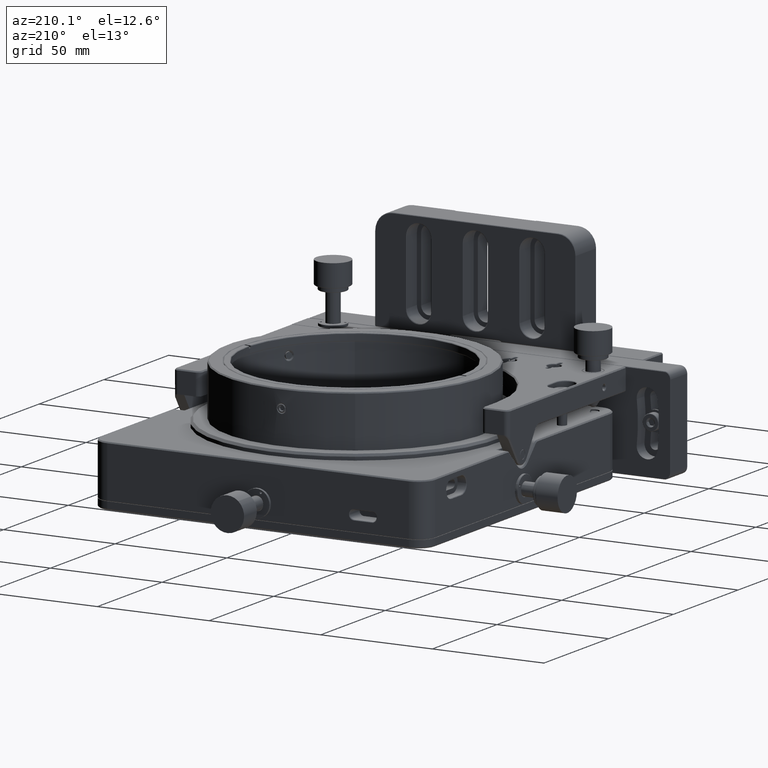
[diagram: clean part render]
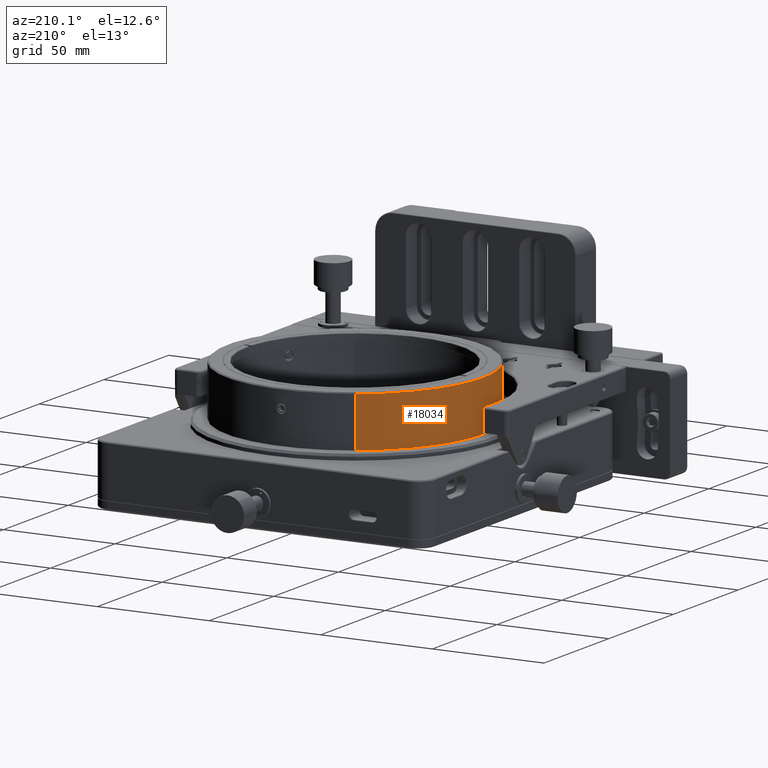
[diagram: same view with one face highlighted and labeled with its STEP entity id]
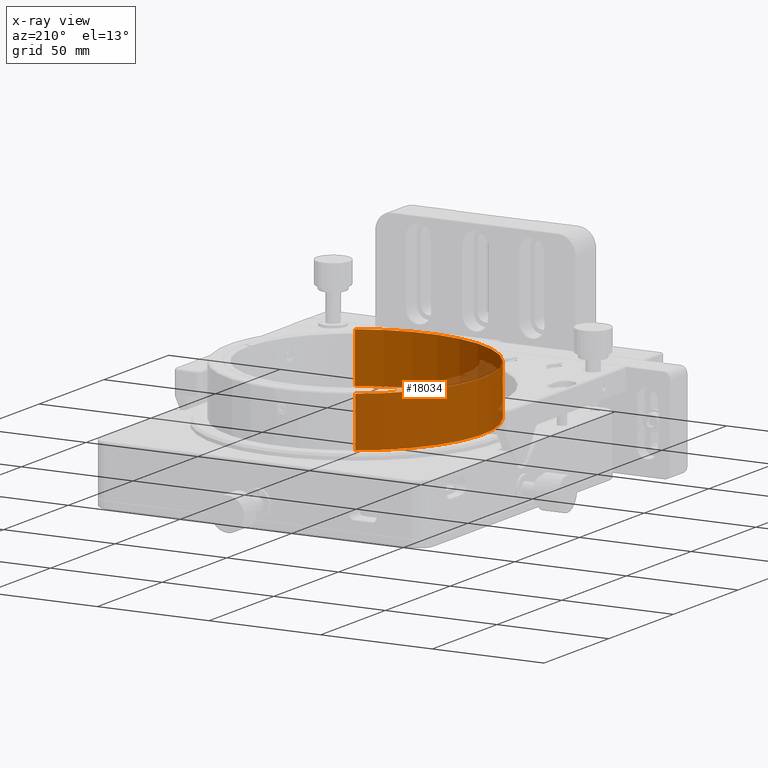
[diagram: x-ray of the same camera — body ghosted, the highlighted face saturated]
A machine part, auxiliary view. The second image highlights one B-rep face of the part: STEP entity #18034.
The next image is the same camera in x-ray: the body ghosted, the highlighted face saturated — about 6% of this face is hidden behind the body in this view.
In plain terms, the highlighted cylindrical surface (partial cylindrical patch) has radius 57.25 mm, axis along (0, 0, 1).
Its self-contained STEP definition (entity closure, byte-faithful):
#355 = ORIENTED_EDGE ( 'NONE', *, *, #79315, .F. ) ;
#489 = CARTESIAN_POINT ( 'NONE',  ( -49.03150797760098101, 71.34544420770808415, 24.94280864587968338 ) ) ;
#1215 = CARTESIAN_POINT ( 'NONE',  ( -50.44838060753755826, 73.83483023278245128, 22.20103990586378728 ) ) ;
#1293 = CARTESIAN_POINT ( 'NONE',  ( -48.48032132693241181, 70.44969703635464953, 23.80917422922992799 ) ) ;
#1614 = CARTESIAN_POINT ( 'NONE',  ( -50.16629586035413269, 73.31517854810145707, 21.35242313401717240 ) ) ;
#2013 = CARTESIAN_POINT ( 'NONE',  ( -50.42777367803543598, 73.79643035060409773, 22.09274114057058114 ) ) ;
#2822 = CARTESIAN_POINT ( 'NONE',  ( -50.28966140081777780, 73.54075411511327331, 24.38332464928119592 ) ) ;
#3093 = EDGE_LOOP ( 'NONE', ( #75250, #47532 ) ) ;
#3217 = CARTESIAN_POINT ( 'NONE',  ( -49.89854211901488412, 72.83404175956844995, 21.01813569080119493 ) ) ;
#3595 = EDGE_CURVE ( 'NONE', #31672, #63857, #8849, .T. ) ;
#4823 = CARTESIAN_POINT ( 'NONE',  ( -49.76341971205269488, 72.59384841838632951, 20.90081265998658111 ) ) ;
#5392 = CARTESIAN_POINT ( 'NONE',  ( -49.35789037707633042, 71.89349998227400818, 20.86252386236676415 ) ) ;
#5780 = CARTESIAN_POINT ( 'NONE',  ( -48.65480530072890275, 70.72901489336135228, 21.61759106757423154 ) ) ;
#6040 = CARTESIAN_POINT ( 'NONE',  ( -4.713455966382529986E-14, 100.9000000000000057, 8.000000000000000000 ) ) ;
#6188 = CARTESIAN_POINT ( 'NONE',  ( -48.54692421973549443, 70.55584010738743928, 21.92681857959061986 ) ) ;
#6996 = CARTESIAN_POINT ( 'NONE',  ( -48.47852697559193302, 70.44684019826397048, 23.80067173139002534 ) ) ;
#7313 = CARTESIAN_POINT ( 'NONE',  ( -50.19775815813667208, 73.37278360696112145, 24.57792373037374389 ) ) ;
#7710 = CARTESIAN_POINT ( 'NONE',  ( -50.43340611576715560, 73.80691907502162508, 23.87531110979516669 ) ) ;
#7789 = CARTESIAN_POINT ( 'NONE',  ( -48.70454819770934307, 70.80962690928627978, 24.47991560009158718 ) ) ;
#8112 = CARTESIAN_POINT ( 'NONE',  ( -50.44571738661782945, 73.82986703159181729, 22.18687415815467290 ) ) ;
#8491 = LINE ( 'NONE', #45105, #23026 ) ;
#8510 = CARTESIAN_POINT ( 'NONE',  ( -49.55830724484307126, 72.23723780170597308, 25.15000000000000924 ) ) ;
#8849 = CIRCLE ( 'NONE', #20563, 57.24999999999999289 ) ;
#9713 = CARTESIAN_POINT ( 'NONE',  ( -49.49228318551890027, 72.12368326063230484, 20.85000000000000142 ) ) ;
#10312 = AXIS2_PLACEMENT_3D ( 'NONE', #74906, #68795, #69194 ) ;
#11086 = CARTESIAN_POINT ( 'NONE',  ( -48.85682998174747382, 71.05761518345069305, 21.25894609117683842 ) ) ;
#11494 = CARTESIAN_POINT ( 'NONE',  ( -48.60462983111479929, 70.64827816416480744, 21.74789417853066098 ) ) ;
#12001 = EDGE_CURVE ( 'NONE', #43791, #63857, #8491, .T. ) ;
#12685 = CARTESIAN_POINT ( 'NONE',  ( -49.21764078308514456, 71.65517003178990763, 25.09913015424947247 ) ) ;
#13091 = CARTESIAN_POINT ( 'NONE',  ( -48.85870269444166780, 71.06054805627431392, 24.74734223273127753 ) ) ;
#13153 = B_SPLINE_CURVE_WITH_KNOTS ( 'NONE', 3,
 ( #66780, #79405, #5392, #67194, #60288, #22875, #30589, #29394, #48100, #54987, #24478, #73695, #73292, #72897, #61480, #11086, #67987, #35902, #23688, #16781, #5780, #11494, #6188, #30996, #48496, #60689, #49289, #17566, #36309, #74093, #43202, #78607, #69590, #50898, #13889, #56196, #38703, #74908, #56997, #32218, #14289, #19979, #6996, #1293, #74508, #19179, #55787, #63499, #49695, #31399, #26090, #45203, #7789, #43600, #13091, #68387, #20376, #50094, #489, #37909, #69196, #32612, #44010, #38307, #50499, #12685, #62701, #69993 ),
 .UNSPECIFIED., .F., .F.,
 ( 4, 2, 2, 1, 1, 1, 2, 2, 2, 2, 2, 2, 2, 2, 2, 1, 1, 2, 2, 2, 2, 2, 1, 1, 1, 2, 2, 2, 2, 2, 2, 2, 2, 2, 1, 1, 2, 2, 4 ),
 ( 0.000000000000000000, 0.06249999999991413813, 0.09374999999987197741, 0.1093749999998474692, 0.1171874999998327865, 0.1210937499998282624, 0.1230468749998280542, 0.1249999999998278599, 0.1874999999998203104, 0.2187499999998158973, 0.2343749999998158418, 0.2499999999998158140, 0.3124999999998212541, 0.3437499999998246958, 0.3593749999998268052, 0.3671874999998279154, 0.3710937499998288591, 0.3730468749998289701, 0.3749999999998290257, 0.4999999999997591926, 0.5624999999997251088, 0.5937499999997079003, 0.6093749999996995736, 0.6171874999996950217, 0.6210937499996923572, 0.6230468749996928013, 0.6249999999996933564, 0.6874999999997536415, 0.7187499999997841726, 0.7343749999997993827, 0.7499999999998144817, 0.8124999999998795408, 0.8437499999999149569, 0.8593749999999311662, 0.8671874999999353850, 0.8710937499999351630, 0.8730468749999350520, 0.8749999999999349409, 1.000000000000000000 ),
 .UNSPECIFIED. ) ;
#13421 = CARTESIAN_POINT ( 'NONE',  ( -50.51412715834207035, 73.95768215879360241, 22.73213386941076664 ) ) ;
#13585 = CARTESIAN_POINT ( 'NONE',  ( 28.77631673936754808, 51.40771681448109831, 8.000000000000000000 ) ) ;
#13889 = CARTESIAN_POINT ( 'NONE',  ( -48.39758967482586627, 70.31837474158234613, 23.13451166013691562 ) ) ;
#14211 = CARTESIAN_POINT ( 'NONE',  ( -50.01702760230794809, 73.04585479921028934, 21.14007971303480815 ) ) ;
#14289 = CARTESIAN_POINT ( 'NONE',  ( -48.46979670667010254, 70.43294321940365421, 23.75810150474790561 ) ) ;
#14609 = CARTESIAN_POINT ( 'NONE',  ( -49.72802526254103128, 72.53298101239764151, 25.09665633379576732 ) ) ;
#15003 = CARTESIAN_POINT ( 'NONE',  ( -49.91495721687442000, 72.86325201139065655, 21.03277888938931639 ) ) ;
#15434 = CARTESIAN_POINT ( 'NONE',  ( -49.49228318551890027, 72.12368326063230484, 20.85000000000000142 ) ) ;
#16605 = CARTESIAN_POINT ( 'NONE',  ( -49.90164541730963776, 72.83956091187410209, 21.02086388329527722 ) ) ;
#16781 = CARTESIAN_POINT ( 'NONE',  ( -48.73763801887178460, 70.86325356653392760, 21.45530812208384575 ) ) ;
#17566 = CARTESIAN_POINT ( 'NONE',  ( -48.49022108921709417, 70.46545624229976568, 22.14551720022175374 ) ) ;
#18034 = ADVANCED_FACE ( 'NONE', ( #56194, #75713 ), #38305, .T. ) ;
#19179 = CARTESIAN_POINT ( 'NONE',  ( -48.50170914093665431, 70.48375334194130915, 23.90873113404798289 ) ) ;
#19502 = CARTESIAN_POINT ( 'NONE',  ( -49.49228318551890027, 72.12368326063230484, 25.14999999999999858 ) ) ;
#19902 = CARTESIAN_POINT ( 'NONE',  ( -50.49589329681133876, 73.92353087117703581, 22.52667592350237058 ) ) ;
#19979 = CARTESIAN_POINT ( 'NONE',  ( -48.47585885180880183, 70.44259247073500774, 23.78791218097000737 ) ) ;
#20299 = CARTESIAN_POINT ( 'NONE',  ( -50.44291341555251762, 73.82464164178968247, 23.82774405982297594 ) ) ;
#20376 = CARTESIAN_POINT ( 'NONE',  ( -48.97910050852110686, 71.25871904044662131, 24.89110957033549454 ) ) ;
#20563 = AXIS2_PLACEMENT_3D ( 'NONE', #34422, #66802, #44437 ) ;
#20705 = CARTESIAN_POINT ( 'NONE',  ( -50.21409144798806068, 73.40257264322990238, 24.54522855128945480 ) ) ;
#20873 = DIRECTION ( 'NONE',  ( 7.798222056111458678E-17, 4.534123169250859820E-17, 1.000000000000000000 ) ) ;
#21101 = CARTESIAN_POINT ( 'NONE',  ( -50.28500683272864791, 73.53242347711787374, 21.61638050464673810 ) ) ;
#22875 = CARTESIAN_POINT ( 'NONE',  ( -49.16592090857717068, 71.56956216443921903, 20.95190036114071575 ) ) ;
#23026 = VECTOR ( 'NONE', #52389, 1000.000000000000000 ) ;
#23172 = ORIENTED_EDGE ( 'NONE', *, *, #12001, .F. ) ;
#23688 = CARTESIAN_POINT ( 'NONE',  ( -48.75551626772183056, 70.89229767052718501, 21.42246339078504036 ) ) ;
#24478 = CARTESIAN_POINT ( 'NONE',  ( -49.08271787537095321, 71.43053582022189119, 21.01252778011541977 ) ) ;
#26010 = CARTESIAN_POINT ( 'NONE',  ( -50.35219911877812393, 73.65612920772170469, 21.80611240839576936 ) ) ;
#26090 = CARTESIAN_POINT ( 'NONE',  ( -48.66039974912276023, 70.73824207022069288, 24.38417277626932034 ) ) ;
#26409 = CARTESIAN_POINT ( 'NONE',  ( -50.38667903822912564, 73.71996275626993622, 24.07499492500106442 ) ) ;
#26808 = CARTESIAN_POINT ( 'NONE',  ( -49.81289651434290278, 72.68231585133307249, 25.04777124219834405 ) ) ;
#26981 = LINE ( 'NONE', #40801, #76035 ) ;
#27209 = CARTESIAN_POINT ( 'NONE',  ( -49.89556518020950904, 72.82874990485672129, 24.98445018613101709 ) ) ;
#27605 = CARTESIAN_POINT ( 'NONE',  ( -50.49699097600551312, 73.92541150280746365, 23.54425117871119966 ) ) ;
#29228 = B_SPLINE_CURVE_WITH_KNOTS ( 'NONE', 3,
 ( #19502, #8510, #64619, #14609, #44728, #26808, #69513, #39822, #57318, #50818, #33729, #27209, #57714, #38625, #63423, #51217, #58515, #32535, #7313, #20705, #2822, #76036, #26409, #39426, #32930, #75235, #7710, #44335, #76831, #20299, #69120, #63818, #27605, #33324, #38230, #13421, #19902, #45925, #63021, #64211, #32134, #56917, #1215, #58116, #8112, #2013, #45125, #26010, #52015, #75637, #21101, #39022, #51621, #1614, #69918, #14211, #76436, #45527, #70311, #70713, #15003, #66219, #16605, #52815, #3217, #4823, #46321, #9713 ),
 .UNSPECIFIED., .F., .F.,
 ( 4, 2, 2, 1, 1, 1, 2, 2, 2, 2, 2, 2, 2, 2, 2, 1, 1, 2, 2, 2, 2, 2, 1, 1, 1, 2, 2, 2, 2, 2, 2, 2, 2, 2, 1, 1, 2, 2, 4 ),
 ( 0.000000000000000000, 0.06249999999979373444, 0.09374999999969134412, 0.1093749999996396771, 0.1171874999996131428, 0.1210937499996022765, 0.1230468749996001532, 0.1249999999995980438, 0.1874999999995990430, 0.2187499999995985156, 0.2343749999995960176, 0.2499999999995934918, 0.3124999999995847766, 0.3437499999995804467, 0.3593749999995793365, 0.3671874999995787814, 0.3710937499995805577, 0.3730468749995810573, 0.3749999999995815014, 0.4999999999996934674, 0.5624999999997503108, 0.5937499999997787326, 0.6093749999997937206, 0.6171874999998027134, 0.6210937499998072653, 0.6230468749998092637, 0.6249999999998112621, 0.6874999999998182565, 0.7187499999998231415, 0.7343749999998241407, 0.7499999999998251399, 0.8124999999998370193, 0.8437499999998399058, 0.8593749999998442357, 0.8671874999998422373, 0.8710937499998453459, 0.8730468749998478994, 0.8749999999998504530, 1.000000000000000000 ),
 .UNSPECIFIED. ) ;
#29394 = CARTESIAN_POINT ( 'NONE',  ( -49.10894216398413903, 71.47425271654117296, 20.99174728043957572 ) ) ;
#30198 = CARTESIAN_POINT ( 'NONE',  ( -49.49228318551890027, 72.12368326063230484, 25.14999999999999858 ) ) ;
#30589 = CARTESIAN_POINT ( 'NONE',  ( -49.13959838398785962, 71.52545823277141324, 20.96910584252100307 ) ) ;
#30996 = CARTESIAN_POINT ( 'NONE',  ( -48.53060125737988528, 70.52978114135146370, 21.98381220379095069 ) ) ;
#31399 = CARTESIAN_POINT ( 'NONE',  ( -48.64672938247971956, 70.71618116819014688, 24.35207480074472031 ) ) ;
#31672 = VERTEX_POINT ( 'NONE', #77500 ) ;
#32067 = DIRECTION ( 'NONE',  ( -7.798222056111458678E-17, -4.534123169250859820E-17, -1.000000000000000000 ) ) ;
#32134 = CARTESIAN_POINT ( 'NONE',  ( -50.45612801612592335, 73.84927191597958540, 22.24365827753952729 ) ) ;
#32218 = CARTESIAN_POINT ( 'NONE',  ( -48.45832346925334377, 70.41468825765795714, 23.69834427060885318 ) ) ;
#32535 = CARTESIAN_POINT ( 'NONE',  ( -50.16638323261339139, 73.31569126689285554, 24.63681226793439194 ) ) ;
#32612 = CARTESIAN_POINT ( 'NONE',  ( -49.06825875386378044, 71.40646854292278078, 24.97544087800487489 ) ) ;
#32930 = CARTESIAN_POINT ( 'NONE',  ( -50.41989084191543924, 73.78173169261080488, 23.93827251803314127 ) ) ;
#33324 = CARTESIAN_POINT ( 'NONE',  ( -50.51972189071244657, 73.96823011545026816, 23.26479697818574977 ) ) ;
#33729 = CARTESIAN_POINT ( 'NONE',  ( -49.89268315670769027, 72.82362771627619225, 24.98693840945282219 ) ) ;
#34422 = CARTESIAN_POINT ( 'NONE',  ( -4.537995970120020056E-14, 100.9000000000000057, 30.50000000000000000 ) ) ;
#35902 = CARTESIAN_POINT ( 'NONE',  ( -48.78970976952487604, 70.94796681436845631, 21.36338227514414712 ) ) ;
#36309 = CARTESIAN_POINT ( 'NONE',  ( -48.48563025964483586, 70.45814909213117971, 22.16622781770158213 ) ) ;
#37346 = VERTEX_POINT ( 'NONE', #13585 ) ;
#37613 = EDGE_CURVE ( 'NONE', #37346, #31672, #26981, .T. ) ;
#37909 = CARTESIAN_POINT ( 'NONE',  ( -49.04959103072844329, 71.37544836660526926, 24.95920911447116453 ) ) ;
#38230 = CARTESIAN_POINT ( 'NONE',  ( -50.51974262245673941, 73.96826981334500317, 22.86797473553879811 ) ) ;
#38305 = CYLINDRICAL_SURFACE ( 'NONE', #10312, 57.24999999999999289 ) ;
#38307 = CARTESIAN_POINT ( 'NONE',  ( -49.07512774519227605, 71.41789808162590703, 24.98120756359812233 ) ) ;
#38625 = CARTESIAN_POINT ( 'NONE',  ( -49.98870321295264318, 72.99486103908118650, 24.89714169892170759 ) ) ;
#38703 = CARTESIAN_POINT ( 'NONE',  ( -48.42483462634162095, 70.36149134760293578, 23.47540863068158501 ) ) ;
#39022 = CARTESIAN_POINT ( 'NONE',  ( -50.25839660997299774, 73.48362411497939206, 21.55175488968869502 ) ) ;
#39426 = CARTESIAN_POINT ( 'NONE',  ( -50.40123888659592666, 73.74701602727870409, 24.01818756360598073 ) ) ;
#39761 = ORIENTED_EDGE ( 'NONE', *, *, #3595, .T. ) ;
#39822 = CARTESIAN_POINT ( 'NONE',  ( -49.86762494097885678, 72.77913964505705735, 25.00778982042206522 ) ) ;
#40801 = CARTESIAN_POINT ( 'NONE',  ( 28.77631673936754808, 51.40771681448100594, -177.3295293435940039 ) ) ;
#43202 = CARTESIAN_POINT ( 'NONE',  ( -48.48247709429016084, 70.45312946788486386, 22.18075239068031479 ) ) ;
#43600 = CARTESIAN_POINT ( 'NONE',  ( -48.79031840063247216, 70.94863271646329395, 24.64768800322935860 ) ) ;
#43791 = VERTEX_POINT ( 'NONE', #50420 ) ;
#43863 = EDGE_CURVE ( 'NONE', #57205, #64725, #29228, .T. ) ;
#44010 = CARTESIAN_POINT ( 'NONE',  ( -49.07239240466261521, 71.41334604502132777, 24.97891885630590281 ) ) ;
#44335 = CARTESIAN_POINT ( 'NONE',  ( -50.43714620414809957, 73.81389147138084184, 23.85707047801142622 ) ) ;
#44437 = DIRECTION ( 'NONE',  ( -0.5026430871505261910, 0.8644940294413772097, 0.000000000000000000 ) ) ;
#44585 = AXIS2_PLACEMENT_3D ( 'NONE', #6040, #32067, #80465 ) ;
#44728 = CARTESIAN_POINT ( 'NONE',  ( -49.76207450520884379, 72.59274399598463390, 25.07941229139618144 ) ) ;
#45105 = CARTESIAN_POINT ( 'NONE',  ( -28.77631673936765111, 150.3922831855190054, -177.3295293435940039 ) ) ;
#45125 = CARTESIAN_POINT ( 'NONE',  ( -50.40397215654898844, 73.75197752186298317, 21.98464196979705676 ) ) ;
#45203 = CARTESIAN_POINT ( 'NONE',  ( -48.68961421265822764, 70.78545933032005166, 24.44868999051854530 ) ) ;
#45527 = CARTESIAN_POINT ( 'NONE',  ( -49.95245935263795189, 72.93017303506189819, 21.06899943550023124 ) ) ;
#45925 = CARTESIAN_POINT ( 'NONE',  ( -50.48818273963318859, 73.90910645374748356, 22.45791862780076542 ) ) ;
#46321 = CARTESIAN_POINT ( 'NONE',  ( -49.62423359491811681, 72.35062429299512132, 20.84999999999998721 ) ) ;
#47532 = ORIENTED_EDGE ( 'NONE', *, *, #57290, .F. ) ;
#48100 = CARTESIAN_POINT ( 'NONE',  ( -49.09363775869915969, 71.44873003857743754, 21.00371565886825920 ) ) ;
#48496 = CARTESIAN_POINT ( 'NONE',  ( -48.50964340455303159, 70.49637551195742446, 22.06400870702304218 ) ) ;
#49289 = CARTESIAN_POINT ( 'NONE',  ( -48.49443204539171859, 70.47215827129318200, 22.12720577453971060 ) ) ;
#49695 = CARTESIAN_POINT ( 'NONE',  ( -48.60832623318398760, 70.65429311819850966, 24.25683818407410541 ) ) ;
#50094 = CARTESIAN_POINT ( 'NONE',  ( -49.01883342633985308, 71.32444584809381638, 24.93079958518079309 ) ) ;
#50420 = CARTESIAN_POINT ( 'NONE',  ( -28.77631673936765111, 150.3922831855190054, 8.000000000000000000 ) ) ;
#50499 = CARTESIAN_POINT ( 'NONE',  ( -49.07564786796388034, 71.41876352511502546, 24.98164412890796626 ) ) ;
#50818 = CARTESIAN_POINT ( 'NONE',  ( -49.88851469419967088, 72.81622178550951219, 24.99049399025208373 ) ) ;
#50898 = CARTESIAN_POINT ( 'NONE',  ( -48.39735790471949173, 70.31800744866259834, 22.73816343721015087 ) ) ;
#51217 = CARTESIAN_POINT ( 'NONE',  ( -50.10447725711057387, 73.20344457645289538, 24.74093470834977992 ) ) ;
#51621 = CARTESIAN_POINT ( 'NONE',  ( -50.24476851215856499, 73.45866607169955387, 21.52048252161098318 ) ) ;
#52015 = CARTESIAN_POINT ( 'NONE',  ( -50.33224845637394651, 73.61929327824977065, 21.74393922965952441 ) ) ;
#52389 = DIRECTION ( 'NONE',  ( 7.798222056111458678E-17, 4.534123169250859820E-17, 1.000000000000000000 ) ) ;
#52815 = CARTESIAN_POINT ( 'NONE',  ( -49.89904038576026579, 72.83492802298587776, 21.01857493369077545 ) ) ;
#54987 = CARTESIAN_POINT ( 'NONE',  ( -49.08708492683766877, 71.43781083329355397, 21.00898431538145417 ) ) ;
#55787 = CARTESIAN_POINT ( 'NONE',  ( -48.52855810832623007, 70.52641692053897771, 24.01659841154905806 ) ) ;
#56194 = FACE_OUTER_BOUND ( 'NONE', #72122, .T. ) ;
#56196 = CARTESIAN_POINT ( 'NONE',  ( -48.40408525737134227, 70.32860708266389338, 23.27019097126619585 ) ) ;
#56917 = CARTESIAN_POINT ( 'NONE',  ( -50.45074896088475924, 73.83924436583599515, 22.21381386745308006 ) ) ;
#56997 = CARTESIAN_POINT ( 'NONE',  ( -48.44959522630392712, 70.40081265220972284, 23.64695088358161712 ) ) ;
#57205 = VERTEX_POINT ( 'NONE', #30198 ) ;
#57290 = EDGE_CURVE ( 'NONE', #64725, #57205, #13153, .T. ) ;
#57318 = CARTESIAN_POINT ( 'NONE',  ( -49.88225728105499712, 72.80510758926226345, 24.99578064773728414 ) ) ;
#57714 = CARTESIAN_POINT ( 'NONE',  ( -49.93785983786822413, 72.90393489934901083, 24.94768485506995503 ) ) ;
#58116 = CARTESIAN_POINT ( 'NONE',  ( -50.44678766274230952, 73.83186150732817055, 22.19252781106768424 ) ) ;
#58515 = CARTESIAN_POINT ( 'NONE',  ( -50.15076531513408753, 73.28733422342395443, 24.66424060240131055 ) ) ;
#60288 = CARTESIAN_POINT ( 'NONE',  ( -49.21853641265520451, 71.65789891838051062, 20.92036432512623989 ) ) ;
#60689 = CARTESIAN_POINT ( 'NONE',  ( -48.50324564147318540, 70.48618816584644264, 22.08986360930255444 ) ) ;
#61480 = CARTESIAN_POINT ( 'NONE',  ( -48.88925198446451503, 71.11079619678390884, 21.21515900243068842 ) ) ;
#62701 = CARTESIAN_POINT ( 'NONE',  ( -49.36026037347810558, 71.89661770322784662, 25.15000000000000213 ) ) ;
#63021 = CARTESIAN_POINT ( 'NONE',  ( -50.47402615941359016, 73.88266489610870735, 22.35493560126538526 ) ) ;
#63423 = CARTESIAN_POINT ( 'NONE',  ( -50.07438793783155262, 73.14911947300252848, 24.78460822304697331 ) ) ;
#63499 = CARTESIAN_POINT ( 'NONE',  ( -48.58620200278026147, 70.61876166105396635, 24.19478055640156455 ) ) ;
#63818 = CARTESIAN_POINT ( 'NONE',  ( -50.44430990305822604, 73.82724429408196443, 23.82050779041935940 ) ) ;
#63857 = VERTEX_POINT ( 'NONE', #79454 ) ;
#64211 = CARTESIAN_POINT ( 'NONE',  ( -50.46630056195152747, 73.86824353584508174, 22.30348339155501591 ) ) ;
#64619 = CARTESIAN_POINT ( 'NONE',  ( -49.62604434030333067, 72.35470003875995815, 25.13743947781381038 ) ) ;
#64725 = VERTEX_POINT ( 'NONE', #15434 ) ;
#66219 = CARTESIAN_POINT ( 'NONE',  ( -49.90558085164000346, 72.84656146546922173, 21.02434229820219258 ) ) ;
#66780 = CARTESIAN_POINT ( 'NONE',  ( -49.49228318551890027, 72.12368326063230484, 20.85000000000000142 ) ) ;
#66802 = DIRECTION ( 'NONE',  ( -7.798222056111458678E-17, -4.534123169250859820E-17, -1.000000000000000000 ) ) ;
#67194 = CARTESIAN_POINT ( 'NONE',  ( -49.25357237779600439, 71.71695911411637780, 20.90317638717416671 ) ) ;
#67987 = CARTESIAN_POINT ( 'NONE',  ( -48.80667696117261301, 70.97564839084276400, 21.33586829333882662 ) ) ;
#68387 = CARTESIAN_POINT ( 'NONE',  ( -48.95032011020035156, 71.21123690444038346, 24.85977097073901732 ) ) ;
#68795 = DIRECTION ( 'NONE',  ( 7.798222056111458678E-17, 4.534123169250859820E-17, 1.000000000000000000 ) ) ;
#69120 = CARTESIAN_POINT ( 'NONE',  ( -50.44402648632641473, 73.82671608100969252, 23.82197693937718697 ) ) ;
#69194 = DIRECTION ( 'NONE',  ( -0.5026430871505261910, 0.8644940294413772097, 0.000000000000000000 ) ) ;
#69196 = CARTESIAN_POINT ( 'NONE',  ( -49.05840060890467669, 71.39007752238954652, 24.96700583442854082 ) ) ;
#69225 = ORIENTED_EDGE ( 'NONE', *, *, #37613, .T. ) ;
#69513 = CARTESIAN_POINT ( 'NONE',  ( -49.83824393336200131, 72.72708255451435377, 25.03050804775024218 ) ) ;
#69590 = CARTESIAN_POINT ( 'NONE',  ( -48.42314561348062085, 70.35866097057009938, 22.45844532249842374 ) ) ;
#69918 = CARTESIAN_POINT ( 'NONE',  ( -50.10277411926190183, 73.20022147432115389, 21.25263025996082078 ) ) ;
#69993 = CARTESIAN_POINT ( 'NONE',  ( -49.49228318551890027, 72.12368326063230484, 25.14999999999999858 ) ) ;
#70311 = CARTESIAN_POINT ( 'NONE',  ( -49.94046770617868702, 72.90874752073460741, 21.05698441029331391 ) ) ;
#70713 = CARTESIAN_POINT ( 'NONE',  ( -49.92332078581597443, 72.87815914704066245, 21.04057790154701024 ) ) ;
#72122 = EDGE_LOOP ( 'NONE', ( #355, #69225, #39761, #23172 ) ) ;
#72897 = CARTESIAN_POINT ( 'NONE',  ( -48.98118594988523711, 71.26200667231091757, 21.10237243048975131 ) ) ;
#73292 = CARTESIAN_POINT ( 'NONE',  ( -49.03519560758988405, 71.35141073657163702, 21.05177563380565076 ) ) ;
#73695 = CARTESIAN_POINT ( 'NONE',  ( -49.07970181445326574, 71.42551312811474418, 21.01500350816924723 ) ) ;
#74093 = CARTESIAN_POINT ( 'NONE',  ( -48.48372959230462698, 70.45512343278446110, 22.17496166092016452 ) ) ;
#74508 = CARTESIAN_POINT ( 'NONE',  ( -48.48152753393880943, 70.45161762238031145, 23.81482518180044394 ) ) ;
#74906 = CARTESIAN_POINT ( 'NONE',  ( -6.158696789758499951E-14, 100.9000000000000057, -177.3295293435940039 ) ) ;
#74908 = CARTESIAN_POINT ( 'NONE',  ( -48.43358291901775914, 70.37537110164377907, 23.54408616586852787 ) ) ;
#75235 = CARTESIAN_POINT ( 'NONE',  ( -50.42557643038294657, 73.79232547295598010, 23.91251179519586501 ) ) ;
#75250 = ORIENTED_EDGE ( 'NONE', *, *, #43863, .F. ) ;
#75637 = CARTESIAN_POINT ( 'NONE',  ( -50.29742882756680444, 73.55524057938133353, 21.64853392204647875 ) ) ;
#75713 = FACE_BOUND ( 'NONE', #3093, .T. ) ;
#76035 = VECTOR ( 'NONE', #20873, 1000.000000000000000 ) ;
#76036 = CARTESIAN_POINT ( 'NONE',  ( -50.33494519586778182, 73.62418733479790944, 24.25337210194073378 ) ) ;
#76436 = CARTESIAN_POINT ( 'NONE',  ( -49.98996668932717569, 72.99729362273882316, 21.10871463294069628 ) ) ;
#76831 = CARTESIAN_POINT ( 'NONE',  ( -50.44122451549418429, 73.82149381878429040, 23.83644248885540051 ) ) ;
#77500 = CARTESIAN_POINT ( 'NONE',  ( 28.77631673936754808, 51.40771681448109831, 30.50000000000000000 ) ) ;
#78607 = CARTESIAN_POINT ( 'NONE',  ( -48.48215422299622901, 70.45261546517920692, 22.18224603028266984 ) ) ;
#79315 = EDGE_CURVE ( 'NONE', #37346, #43791, #79635, .T. ) ;
#79405 = CARTESIAN_POINT ( 'NONE',  ( -49.42635496495893221, 72.01029355230289752, 20.84999999999999787 ) ) ;
#79454 = CARTESIAN_POINT ( 'NONE',  ( -28.77631673936765111, 150.3922831855190054, 30.50000000000000000 ) ) ;
#79635 = CIRCLE ( 'NONE', #44585, 57.24999999999999289 ) ;
#80465 = DIRECTION ( 'NONE',  ( -0.5026430871505261910, 0.8644940294413772097, 0.000000000000000000 ) ) ;